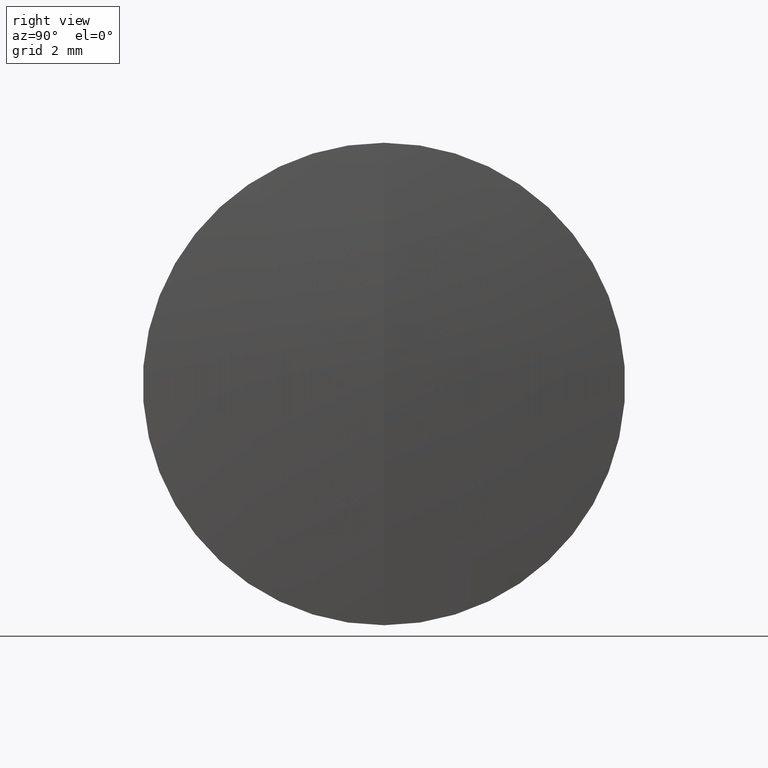
[diagram: clean part render]
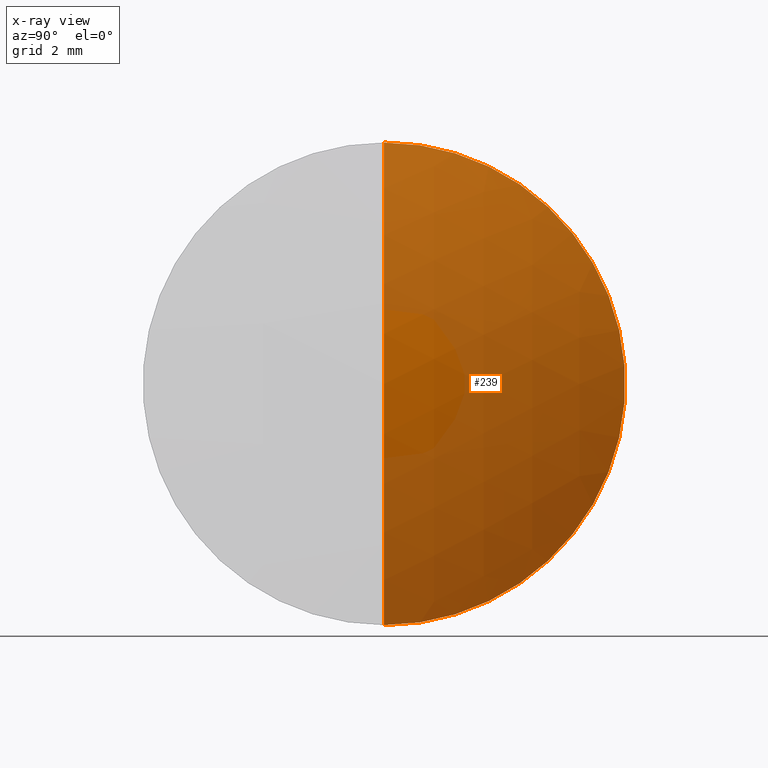
[diagram: x-ray — body ghosted, one internal face saturated and labeled with its STEP entity id]
A machine part, right view, then the same camera in x-ray: the body is ghosted and one INTERNAL B-rep face — a face not visible from any outside direction — is saturated and labeled: STEP entity #239.
In plain terms, the highlighted spherical surface has radius 13.3 mm.
Its self-contained STEP definition (entity closure, byte-faithful):
#13 = CIRCLE ( 'NONE', #302, 13.29999999999997600 ) ;
#14 = VERTEX_POINT ( 'NONE', #282 ) ;
#74 = ORIENTED_EDGE ( 'NONE', *, *, #339, .F. ) ;
#78 = CARTESIAN_POINT ( 'NONE',  ( 260.7089566504702100, 0.0000000000000000000, -3.469446951953614200E-015 ) ) ;
#101 = CARTESIAN_POINT ( 'NONE',  ( 260.7089566504702100, 0.0000000000000000000, -3.469446951953614200E-015 ) ) ;
#103 = EDGE_LOOP ( 'NONE', ( #338, #343, #74 ) ) ;
#104 = DIRECTION ( 'NONE',  ( 0.0000000000000000000, 0.0000000000000000000, -1.000000000000000000 ) ) ;
#120 = CARTESIAN_POINT ( 'NONE',  ( 272.3951664723072100, 0.0000000000000000000, 6.349999999999996100 ) ) ;
#126 = DIRECTION ( 'NONE',  ( -1.000000000000000000, -0.0000000000000000000, -0.0000000000000000000 ) ) ;
#144 = VERTEX_POINT ( 'NONE', #208 ) ;
#151 = CIRCLE ( 'NONE', #305, 13.29999999999997600 ) ;
#155 = CARTESIAN_POINT ( 'NONE',  ( 260.7089566504702100, 0.0000000000000000000, -3.469446951953614200E-015 ) ) ;
#161 = SPHERICAL_SURFACE ( 'NONE', #192, 13.29999999999997600 ) ;
#167 = VERTEX_POINT ( 'NONE', #120 ) ;
#191 = CARTESIAN_POINT ( 'NONE',  ( 272.3951664723072100, 0.0000000000000000000, 0.0000000000000000000 ) ) ;
#192 = AXIS2_PLACEMENT_3D ( 'NONE', #155, #210, #214 ) ;
#204 = DIRECTION ( 'NONE',  ( -0.0000000000000000000, 1.000000000000000000, 1.224646799147353200E-016 ) ) ;
#208 = CARTESIAN_POINT ( 'NONE',  ( 272.3951664723072100, 7.776507174585689200E-016, -6.349999999999996100 ) ) ;
#210 = DIRECTION ( 'NONE',  ( 0.0000000000000000000, 1.000000000000000000, 0.0000000000000000000 ) ) ;
#211 = CIRCLE ( 'NONE', #242, 6.349999999999996100 ) ;
#214 = DIRECTION ( 'NONE',  ( 0.0000000000000000000, 0.0000000000000000000, 1.000000000000000000 ) ) ;
#239 = ADVANCED_FACE ( 'NONE', ( #275 ), #161, .T. ) ;
#241 = DIRECTION ( 'NONE',  ( 0.0000000000000000000, 0.0000000000000000000, 1.000000000000000000 ) ) ;
#242 = AXIS2_PLACEMENT_3D ( 'NONE', #191, #126, #241 ) ;
#271 = DIRECTION ( 'NONE',  ( 0.0000000000000000000, -1.000000000000000000, 0.0000000000000000000 ) ) ;
#275 = FACE_OUTER_BOUND ( 'NONE', #103, .T. ) ;
#282 = CARTESIAN_POINT ( 'NONE',  ( 274.0089566504702200, 0.0000000000000000000, -2.655056830520625700E-015 ) ) ;
#285 = EDGE_CURVE ( 'NONE', #14, #144, #13, .T. ) ;
#291 = DIRECTION ( 'NONE',  ( 0.0000000000000000000, -1.224646799147353000E-016, 1.000000000000000000 ) ) ;
#302 = AXIS2_PLACEMENT_3D ( 'NONE', #101, #204, #291 ) ;
#305 = AXIS2_PLACEMENT_3D ( 'NONE', #78, #271, #104 ) ;
#309 = EDGE_CURVE ( 'NONE', #14, #167, #151, .T. ) ;
#338 = ORIENTED_EDGE ( 'NONE', *, *, #309, .F. ) ;
#339 = EDGE_CURVE ( 'NONE', #167, #144, #211, .T. ) ;
#343 = ORIENTED_EDGE ( 'NONE', *, *, #285, .T. ) ;